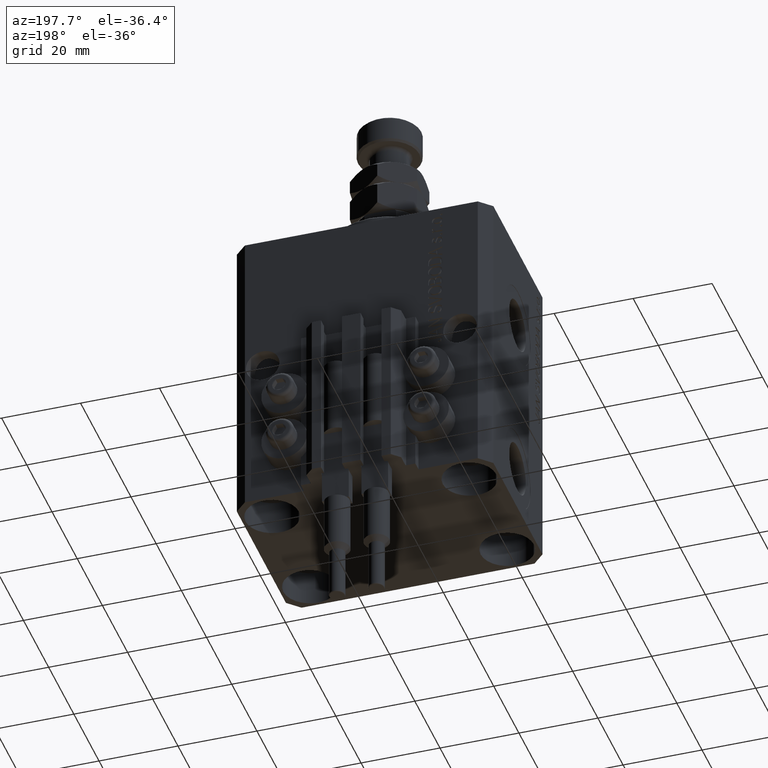
[diagram: clean part render]
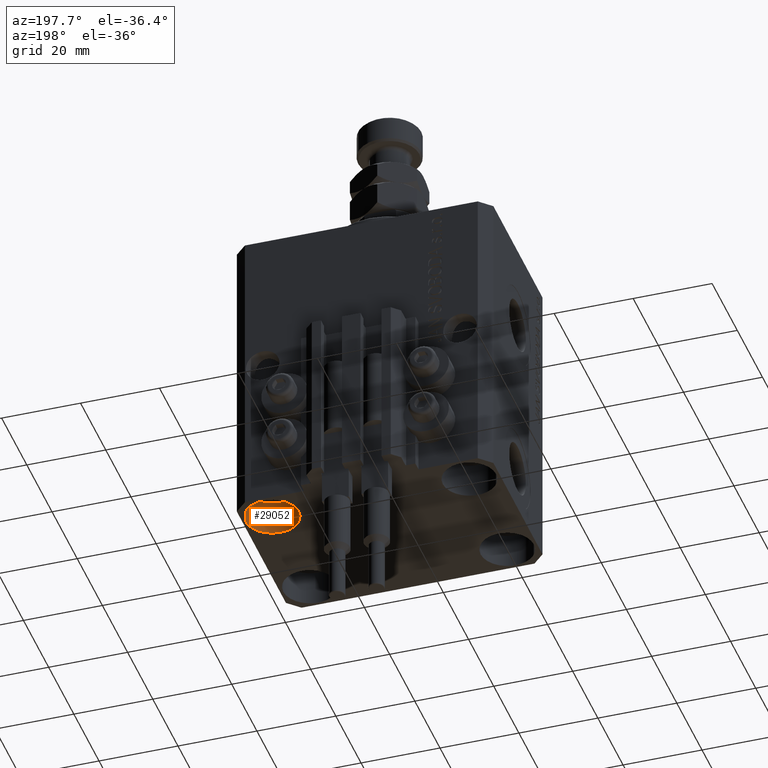
[diagram: same view with one face highlighted and labeled with its STEP entity id]
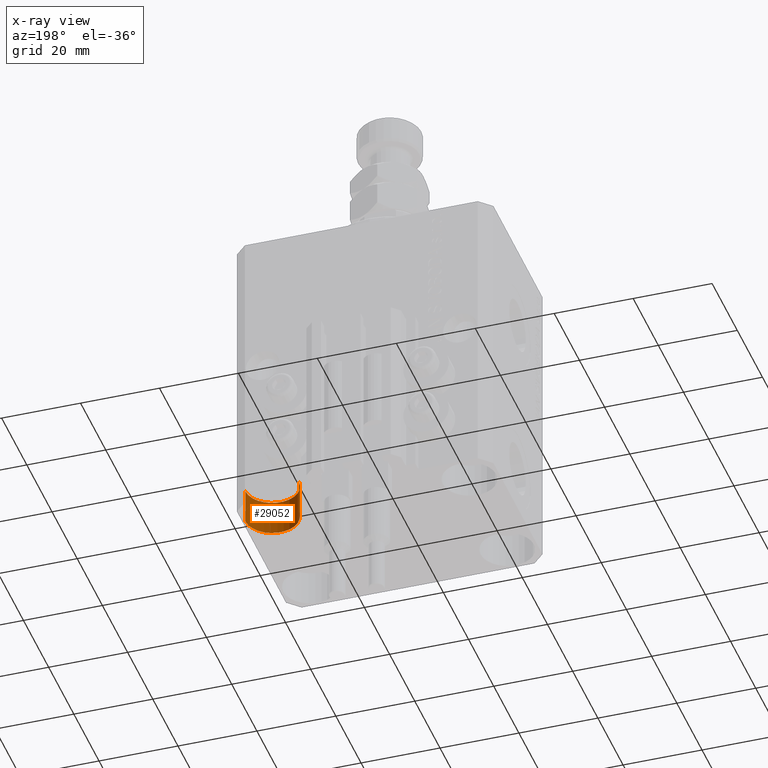
[diagram: x-ray of the same camera — body ghosted, the highlighted face saturated]
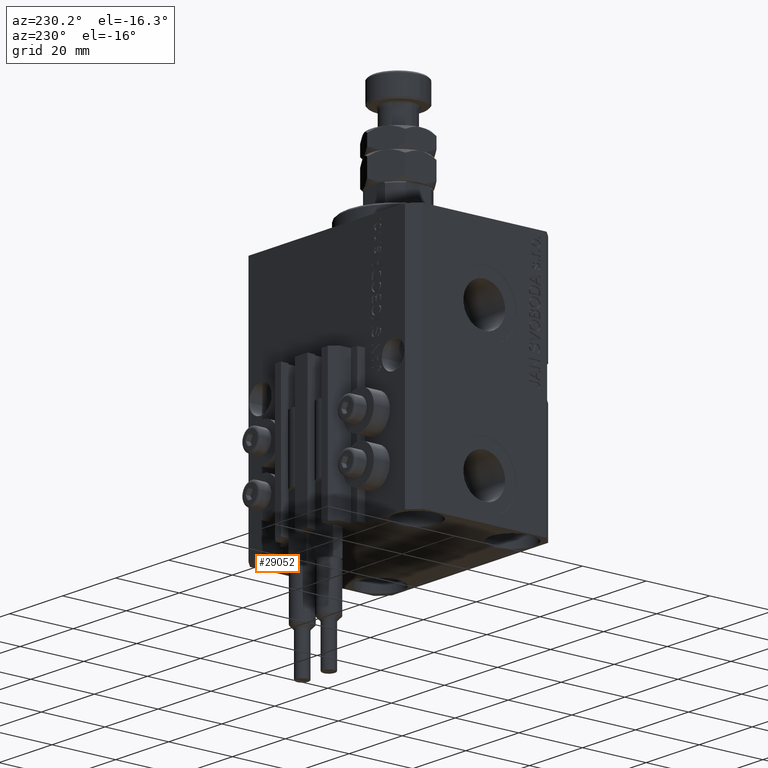
[diagram: same view with one face highlighted and labeled with its STEP entity id]
A machine part, auxiliary view. The second image highlights one B-rep face of the part: STEP entity #29052.
The next image is the same camera in x-ray: the body ghosted, the highlighted face saturated — about 0% of this face is hidden behind the body in this view.
A second angle (auxiliary view) of the same face is appended — the face is thin or edge-on in the first view.
In plain terms, the highlighted cylindrical surface (edge-blend (fillet) strip) has radius 6.75 mm, axis along (-0, -0, -1).
Its self-contained STEP definition (entity closure, byte-faithful):
#1326 = EDGE_CURVE ( 'NONE', #38275, #36342, #31101, .T. ) ;
#2551 = ORIENTED_EDGE ( 'NONE', *, *, #19995, .F. ) ;
#4892 = CIRCLE ( 'NONE', #44588, 6.749999999958452790 ) ;
#5371 = DIRECTION ( 'NONE',  ( 1.000000000000000000, 0.000000000000000000, 0.000000000000000000 ) ) ;
#5630 = CARTESIAN_POINT ( 'NONE',  ( 31.74999999995845101, 15.00000000000000888, -77.00000000000000000 ) ) ;
#6748 = CARTESIAN_POINT ( 'NONE',  ( 31.74999999995845101, 15.00000000000000888, -68.00000000000000000 ) ) ;
#7315 = DIRECTION ( 'NONE',  ( -0.000000000000000000, -0.000000000000000000, 1.000000000000000000 ) ) ;
#7351 = AXIS2_PLACEMENT_3D ( 'NONE', #8507, #23998, #20188 ) ;
#7485 = ORIENTED_EDGE ( 'NONE', *, *, #11119, .T. ) ;
#7801 = AXIS2_PLACEMENT_3D ( 'NONE', #30393, #7315, #11116 ) ;
#8507 = CARTESIAN_POINT ( 'NONE',  ( 24.99999999999999645, 15.00000000000000888, -68.00000000000000000 ) ) ;
#10863 = VERTEX_POINT ( 'NONE', #27955 ) ;
#11116 = DIRECTION ( 'NONE',  ( 1.000000000000000000, 0.000000000000000000, 0.000000000000000000 ) ) ;
#11119 = EDGE_CURVE ( 'NONE', #10863, #14873, #14861, .T. ) ;
#11963 = EDGE_CURVE ( 'NONE', #38275, #10863, #4892, .T. ) ;
#12341 = FACE_OUTER_BOUND ( 'NONE', #15089, .T. ) ;
#14861 = LINE ( 'NONE', #6748, #22685 ) ;
#14873 = VERTEX_POINT ( 'NONE', #5630 ) ;
#14940 = CARTESIAN_POINT ( 'NONE',  ( 18.25000000004154543, 15.00000000000000888, -77.00000000000000000 ) ) ;
#15089 = EDGE_LOOP ( 'NONE', ( #44344, #7485, #2551, #23459 ) ) ;
#19995 = EDGE_CURVE ( 'NONE', #36342, #14873, #37025, .T. ) ;
#20188 = DIRECTION ( 'NONE',  ( -1.000000000000000000, 0.000000000000000000, 0.000000000000000000 ) ) ;
#21118 = CARTESIAN_POINT ( 'NONE',  ( 24.99999999999999645, 15.00000000000000888, -68.00000000000000000 ) ) ;
#22685 = VECTOR ( 'NONE', #48870, 1000.000000000000000 ) ;
#23459 = ORIENTED_EDGE ( 'NONE', *, *, #1326, .F. ) ;
#23998 = DIRECTION ( 'NONE',  ( -0.000000000000000000, -0.000000000000000000, -1.000000000000000000 ) ) ;
#26443 = VECTOR ( 'NONE', #46554, 1000.000000000000000 ) ;
#27807 = CYLINDRICAL_SURFACE ( 'NONE', #7351, 6.749999999958452790 ) ;
#27955 = CARTESIAN_POINT ( 'NONE',  ( 31.74999999995845101, 15.00000000000000888, -68.00000000000000000 ) ) ;
#29052 = ADVANCED_FACE ( 'NONE', ( #12341 ), #27807, .F. ) ;
#30393 = CARTESIAN_POINT ( 'NONE',  ( 24.99999999999999645, 15.00000000000000888, -77.00000000000000000 ) ) ;
#31101 = LINE ( 'NONE', #31604, #26443 ) ;
#31604 = CARTESIAN_POINT ( 'NONE',  ( 18.25000000004154543, 15.00000000000000888, -68.00000000000000000 ) ) ;
#36342 = VERTEX_POINT ( 'NONE', #14940 ) ;
#36986 = CARTESIAN_POINT ( 'NONE',  ( 18.25000000004154543, 15.00000000000000888, -68.00000000000000000 ) ) ;
#37025 = CIRCLE ( 'NONE', #7801, 6.749999999958452790 ) ;
#38275 = VERTEX_POINT ( 'NONE', #36986 ) ;
#40127 = DIRECTION ( 'NONE',  ( -0.000000000000000000, -0.000000000000000000, 1.000000000000000000 ) ) ;
#44344 = ORIENTED_EDGE ( 'NONE', *, *, #11963, .T. ) ;
#44588 = AXIS2_PLACEMENT_3D ( 'NONE', #21118, #40127, #5371 ) ;
#46554 = DIRECTION ( 'NONE',  ( -0.000000000000000000, -0.000000000000000000, -1.000000000000000000 ) ) ;
#48870 = DIRECTION ( 'NONE',  ( -0.000000000000000000, -0.000000000000000000, -1.000000000000000000 ) ) ;